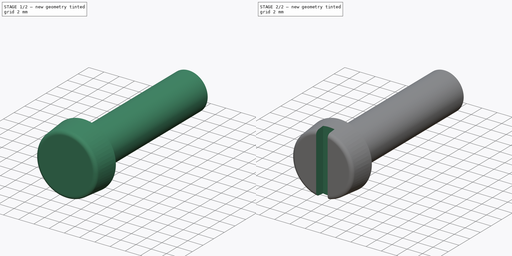
[diagram: build sequence overview — one tinted view per stage of 2, left to right]
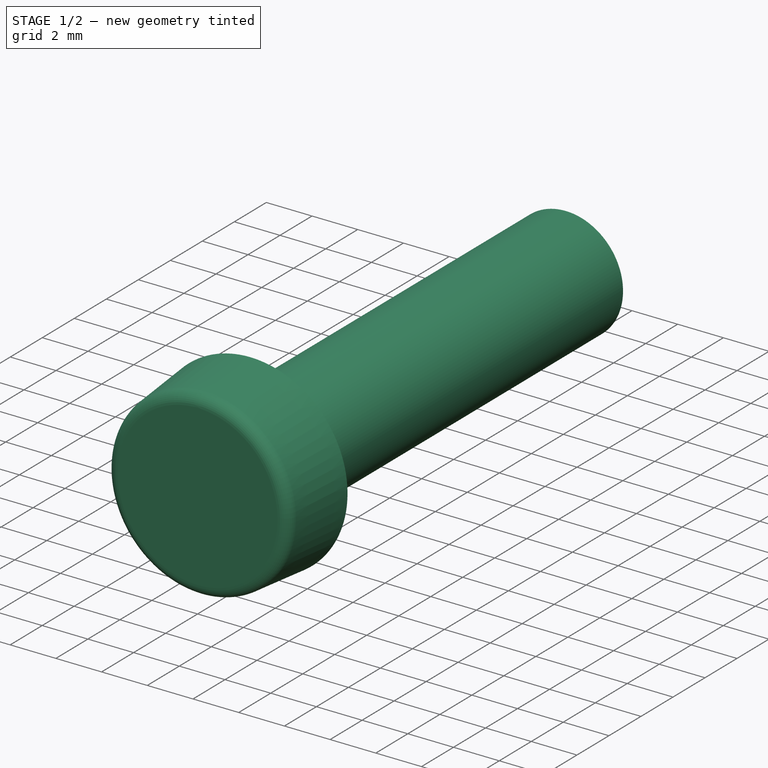
[diagram: stage 1 of 2 — iso view after this stage's code; geometry added in this stage tinted green]
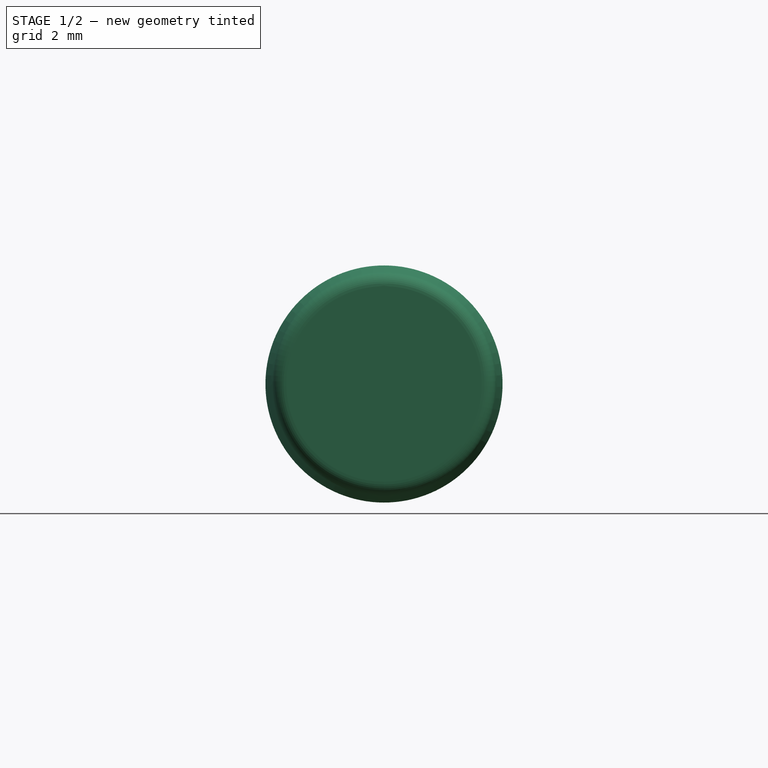
[diagram: stage 1 of 2 — front view after this stage's code; geometry added in this stage tinted green]
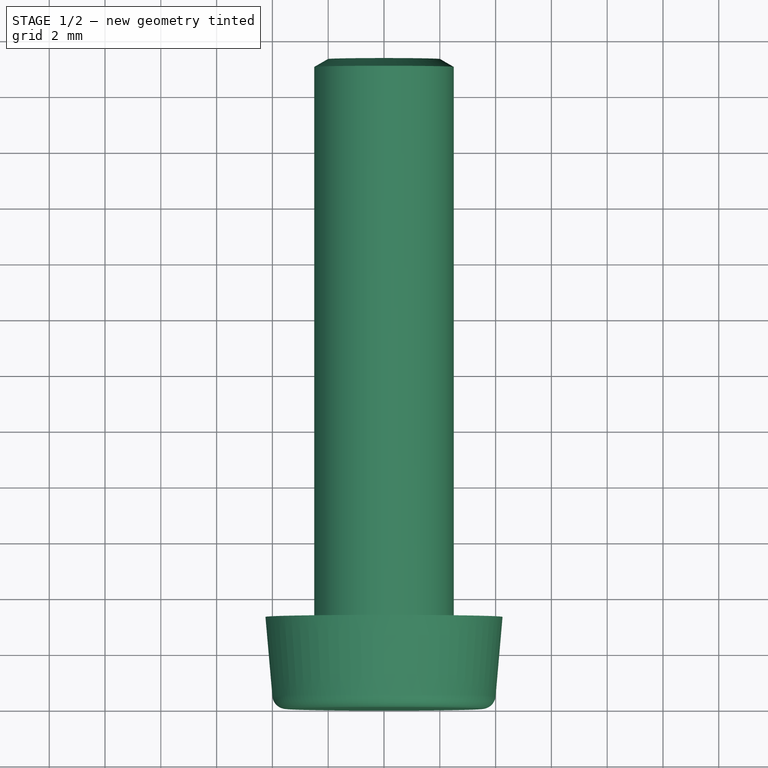
[diagram: stage 1 of 2 — top view after this stage's code; geometry added in this stage tinted green]
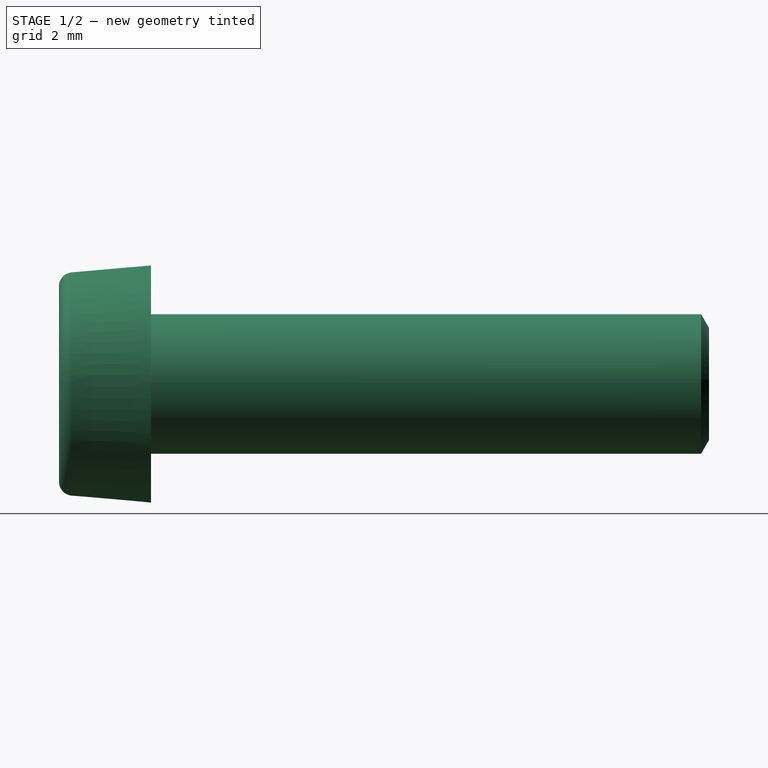
[diagram: stage 1 of 2 — right view after this stage's code; geometry added in this stage tinted green]
FCSTD DOCUMENT  (FreeCAD 0.14R3700 (Git))
Label: Zyl-Schraube_DIN84-M5
License: CC-BY 3.0
LicenseURL: http://creativecommons.org/licenses/by/3.0/
objects: Sketcher::SketchObject×2, PartDesign::Revolution×1, PartDesign::Pocket×1
note: 6 computed .brp shape members not serialized (recipe doc carries the construction recipe); baked Part::Feature solids carry a one-line shape summary decoded from their .brp

FEATURE [Sketcher::SketchObject] Sketch
  Placement = pos=(0,0,0) rot=(0.57735,0.57735,0.57735;2.0944rad)
  sketch-geometry (8):
    g0: LineSegment StartX=0 StartY=3.50312 StartZ=0 EndX=0 EndY=0 EndZ=0
    g1: LineSegment StartX=0 StartY=0 StartZ=0 EndX=23.3 EndY=0 EndZ=0
    g2: LineSegment StartX=23.3 StartY=0 StartZ=0 EndX=23.3 EndY=2.01 EndZ=0
    g3: LineSegment StartX=23.3 StartY=2.01 StartZ=0 EndX=23.0171 EndY=2.5 EndZ=0
    g4: LineSegment StartX=23.0171 StartY=2.5 StartZ=0 EndX=3.3 EndY=2.5 EndZ=0
    g5: LineSegment StartX=3.3 StartY=2.5 StartZ=0 EndX=3.3 EndY=4.25 EndZ=0
    g6: LineSegment StartX=3.3 StartY=4.25 StartZ=0 EndX=0.456422 EndY=4.00122 EndZ=0
    g7: ArcOfCircle CenterX=0.5 CenterY=3.50312 CenterZ=0 NormalX=0 NormalY=0 NormalZ=1 Radius=0.5 StartAngle=1.65806 EndAngle=3.14159
  constraints (24):
    c: Coincident(g0,g-1)
    c: Coincident(g0,g1)
    c: Horizontal(g1)
    c: Coincident(g1,g2)
    c: Vertical(g2)
    c: Coincident(g2,g3)
    c: Coincident(g3,g4)
    c: Horizontal(g4)
    c: Coincident(g4,g5)
    c: Vertical(g5)
    c: Coincident(g5,g6)
    c: Coincident(g7,g6)
    c: Coincident(g7,g0)
    c: Tangent(g6,g7)
    c: Tangent(g7,g0)
    c: Angle(g6,g5) = 1.48353
    c: Radius(g7) = 0.5
    c: DistanceX(g5,g0) = -3.3
    c: DistanceX(g5,g2) = 20
    c: DistanceY(g2) = 2.01
    c: DistanceY(g3,g1) = -2.5
    c: Angle(g4,g3) = 2.0944
    c: DistanceY(g-1,g5) = 4.25
    c: Vertical(g0)
FEATURE [PartDesign::Revolution] Revolution
  Angle = 360
  Axis = (0,1,0)
  Base = (0,0,0)
  Placement = pos=(0,0,0) rot=(0.57735,0.57735,0.57735;2.0944rad)
  ReferenceAxis = -> Sketch [H_Axis]
  Sketch = -> Sketch
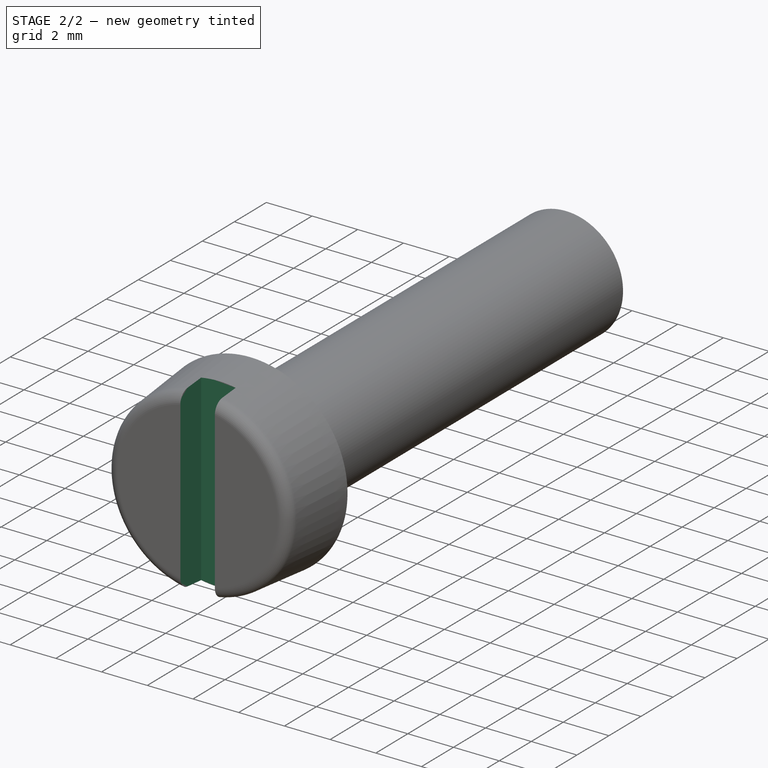
[diagram: stage 2 of 2 — iso view after this stage's code; geometry added in this stage tinted green]
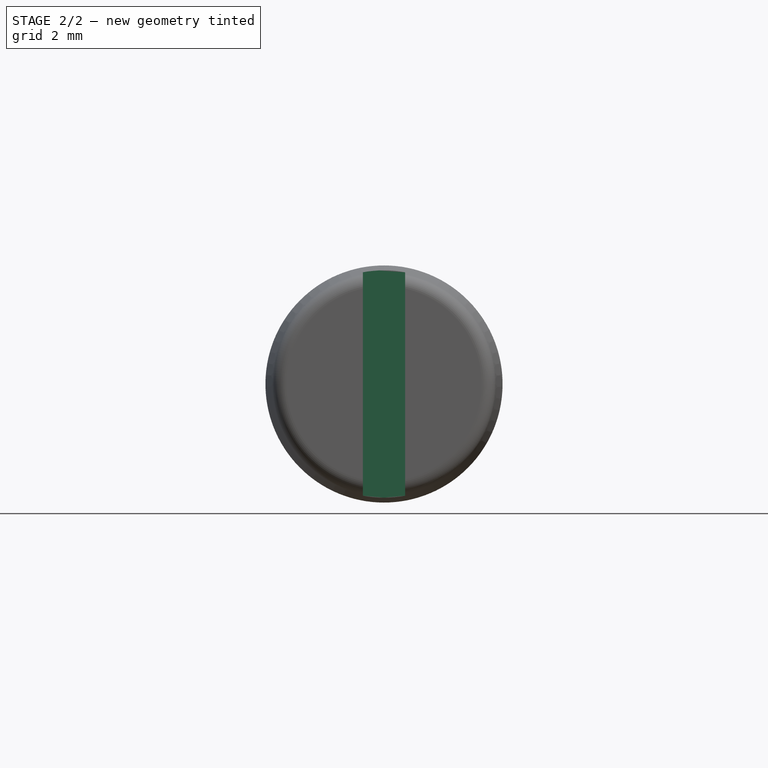
[diagram: stage 2 of 2 — front view after this stage's code; geometry added in this stage tinted green]
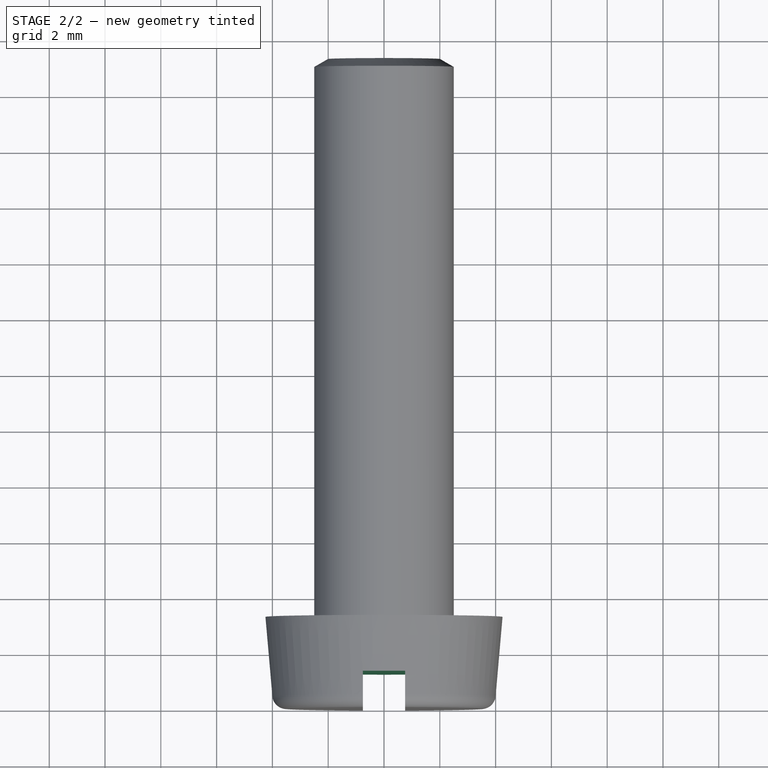
[diagram: stage 2 of 2 — top view after this stage's code; geometry added in this stage tinted green]
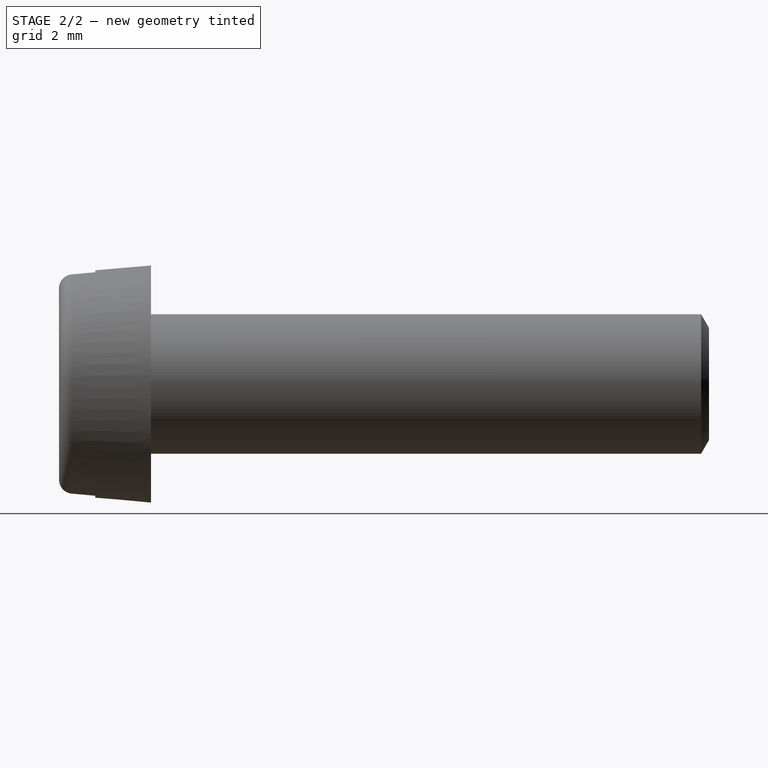
[diagram: stage 2 of 2 — right view after this stage's code; geometry added in this stage tinted green]
FEATURE [Sketcher::SketchObject] Sketch001
  Placement = pos=(0,0,0) rot=(0.57735,0.57735,-0.57735;2.0944rad)
  Support = -> Revolution [Face1]
  sketch-geometry (4):
    g0: LineSegment StartX=-4.25 StartY=0.755 StartZ=0 EndX=4.25 EndY=0.755 EndZ=0
    g1: LineSegment StartX=4.25 StartY=0.755 StartZ=0 EndX=4.25 EndY=-0.755 EndZ=0
    g2: LineSegment StartX=4.25 StartY=-0.755 StartZ=0 EndX=-4.25 EndY=-0.755 EndZ=0
    g3: LineSegment StartX=-4.25 StartY=-0.755 StartZ=0 EndX=-4.25 EndY=0.755 EndZ=0
  constraints (12):
    c: Coincident(g0,g1)
    c: Coincident(g1,g2)
    c: Coincident(g2,g3)
    c: Coincident(g3,g0)
    c: Horizontal(g0)
    c: Horizontal(g2)
    c: Vertical(g1)
    c: Vertical(g3)
    c: Symmetric(g2,g0,g-1)
    c: DistanceY(g3) = 1.51
    c: Symmetric(g1,g2,g-2)
    c: DistanceX(g2) = -8.5
FEATURE [PartDesign::Pocket] Pocket  label="Zyl-Schraube DIN 84 - M5 x 20 #"
  Length = 1.3
  Placement = pos=(0,0,0) rot=(0.57735,0.57735,0.57735;2.0944rad)
  Sketch = -> Sketch001
  Type = 0
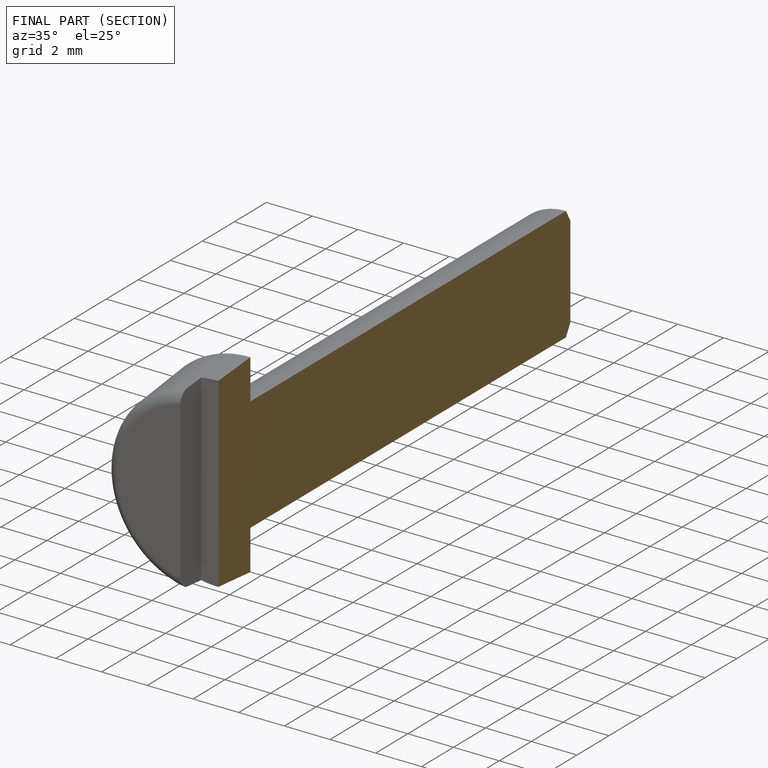
[diagram: finished part — half-section view (interior)]
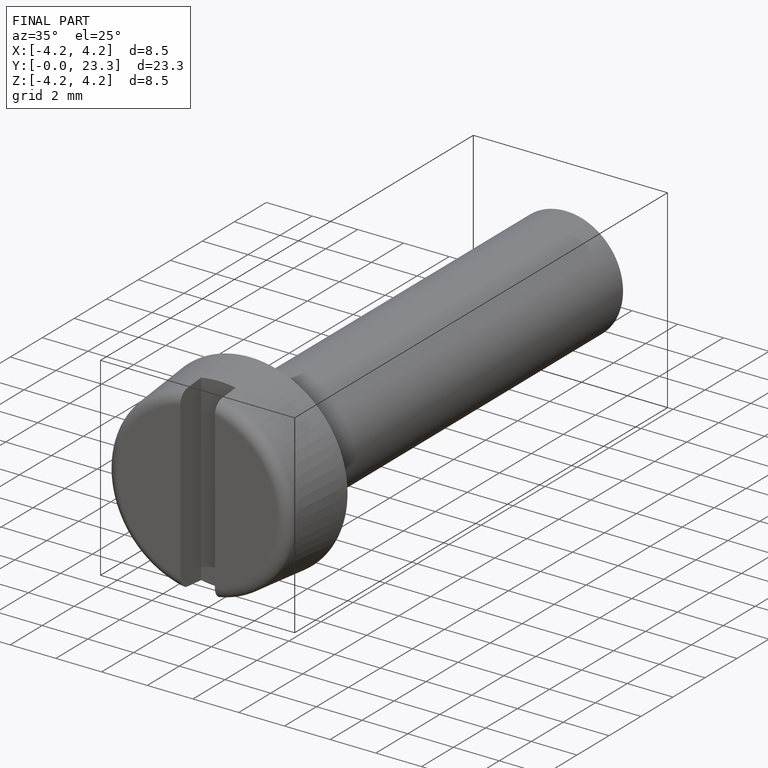
[diagram: finished part — iso view with bounding-box wireframe]
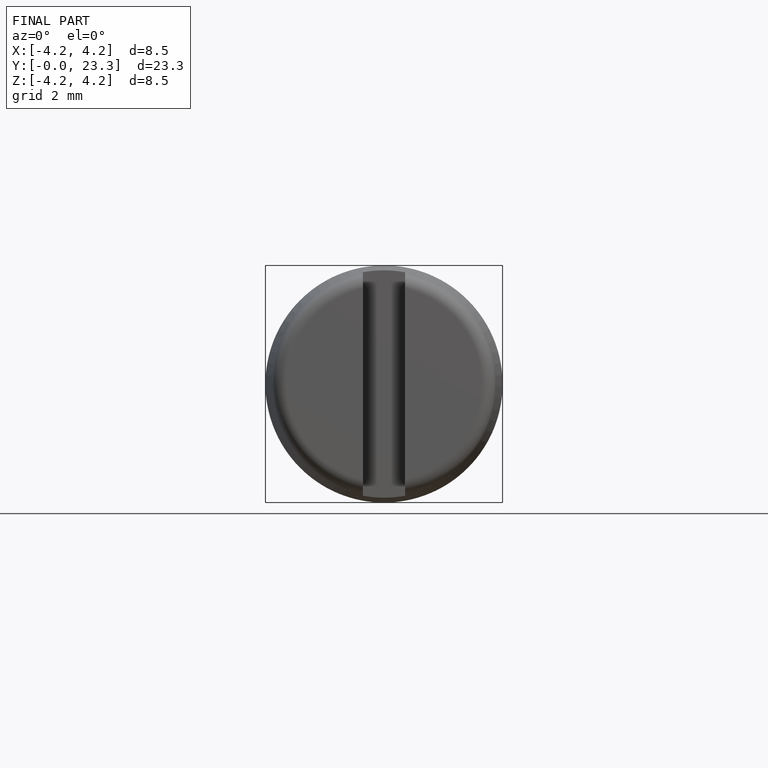
[diagram: finished part — front view with bounding-box wireframe]
